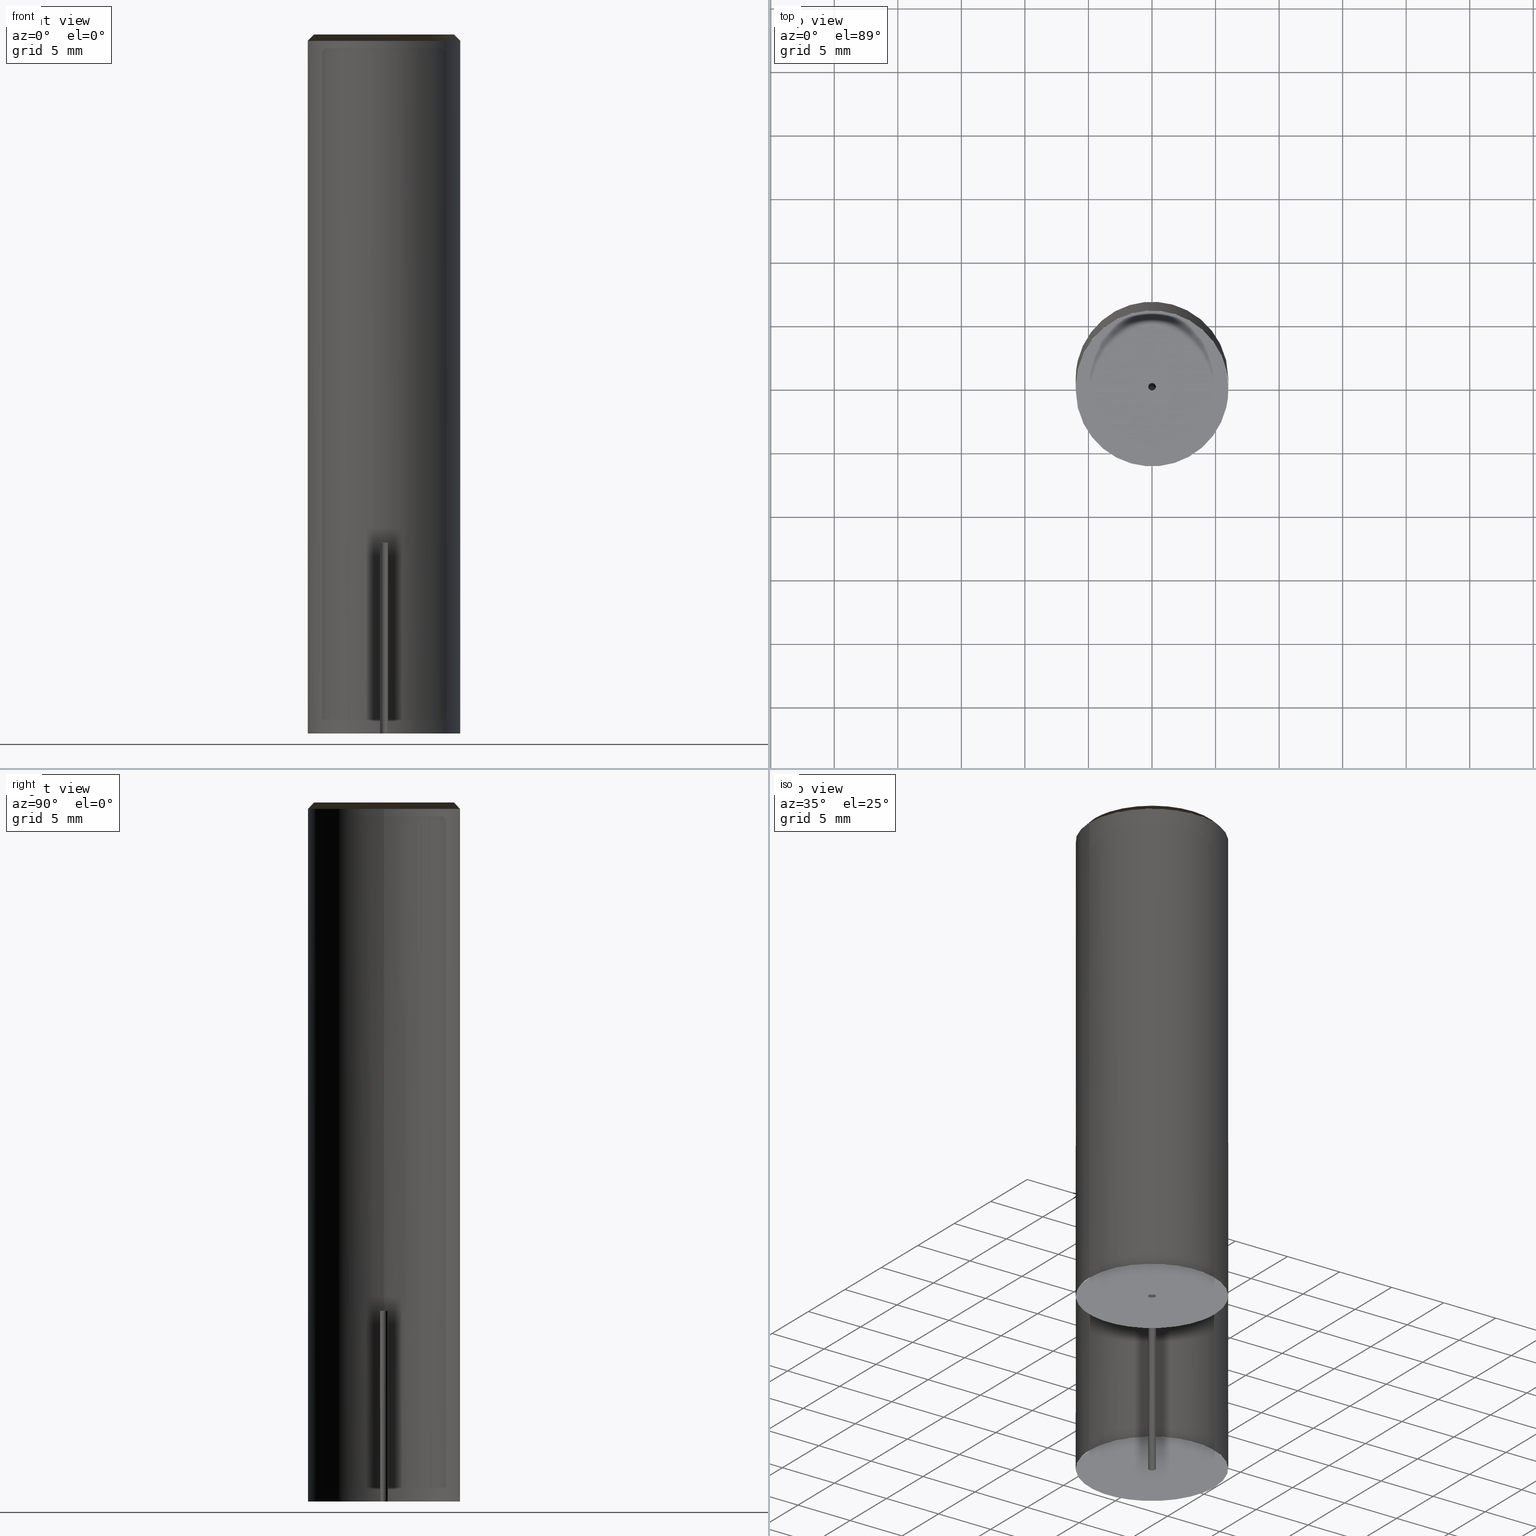
[diagram: canonical four-view strip — front | top / right | iso, engineering-drawing reading convention]
A machine part, canonical four-view strip (front | top / right | iso — engineering-drawing reading convention). The complete STEP part file that produces these views, byte-faithful:
ISO-10303-21;
HEADER;
/* Generated by ISBE GmbH (www.isbe.de) */
/* OPTION: using custom schema-name function */

FILE_DESCRIPTION(
/* description */ (''),
/* implementation_level */ '2;1');

FILE_NAME(
/*name*/ '2510090120',
/*time_stamp*/'2019-2-20T10:20:38',
/*author*/ ('ISBE GmbH'),
/*organization*/ ('ISBE GmbH'),
/*preprocessor_version*/ 'STEP IO v1.0',
/*originating_system*/ '',
/*authorisation*/ '');

FILE_SCHEMA (('AUTOMOTIVE_DESIGN'));
ENDSEC;

DATA;
#10=SHAPE_DEFINITION_REPRESENTATION(#11,#53);
#11=PRODUCT_DEFINITION_SHAPE('Document','',#13);
#12=PRODUCT_DEFINITION_CONTEXT('3D Mechanical Parts',#17,'design');
#13=PRODUCT_DEFINITION('A','First version',#14,#12);
#14=PRODUCT_DEFINITION_FORMATION_WITH_SPECIFIED_SOURCE('A','First version',#19,.MADE.);
#15=PRODUCT_RELATED_PRODUCT_CATEGORY('tool','tool',(#19));
#16=APPLICATION_PROTOCOL_DEFINITION('Draft International Standard', 'automotive_design',1999,#17);
#17=APPLICATION_CONTEXT('data for automotive mechanical design processes');
#18=PRODUCT_CONTEXT('3D Mechanical Parts',#17,'mechanical');
#19=PRODUCT('Document','Document','ISBE converted to STEP',(#18));
#20=(
LENGTH_UNIT()
NAMED_UNIT(*)
SI_UNIT(.MILLI.,.METRE.)
);
#21=(
NAMED_UNIT(*)
PLANE_ANGLE_UNIT()
SI_UNIT($,.RADIAN.)
);
#22=DIMENSIONAL_EXPONENTS(0.,0.,0.,0.,0.,0.,0.);
#23=PLANE_ANGLE_MEASURE_WITH_UNIT(PLANE_ANGLE_MEASURE(0.01745329252),#21);
#24=(
CONVERSION_BASED_UNIT('DEGREES',#23)
NAMED_UNIT(#22)
PLANE_ANGLE_UNIT()
);
#25=(
NAMED_UNIT(*)
SI_UNIT($,.STERADIAN.)
SOLID_ANGLE_UNIT()
);
#26=UNCERTAINTY_MEASURE_WITH_UNIT(LENGTH_MEASURE(0.001),#20, 'DISTANCE_ACCURACY_VALUE', 'Maximum model space distance between geometric entities at asserted connectivities');
#27=(
GEOMETRIC_REPRESENTATION_CONTEXT(3)
GLOBAL_UNCERTAINTY_ASSIGNED_CONTEXT((#26))
GLOBAL_UNIT_ASSIGNED_CONTEXT((#25,#24,#20))
REPRESENTATION_CONTEXT('ID1','3D')
);
#28=CARTESIAN_POINT('',(0.0,0.0,0.0));
#29=DIRECTION('',(1.0,0.0,0.0));
#30=DIRECTION('',(0.0,0.0,1.0));
#31=AXIS2_PLACEMENT_3D('',#28,#30,#29);
#32=CARTESIAN_POINT('',(0.0,0.0,0.0));
#33=DIRECTION('',(1.0,0.0,0.0));
#34=DIRECTION('',(0.0,0.0,1.0));
#35=AXIS2_PLACEMENT_3D('',#32,#34,#33);
#36=CARTESIAN_POINT('',(0.0,0.0,0.0));
#37=DIRECTION('',(1.0,0.0,0.0));
#38=DIRECTION('',(0.0,0.0,1.0));
#39=AXIS2_PLACEMENT_3D('',#36,#38,#37);
#40=CARTESIAN_POINT('',(0.0,0.0,0.0));
#41=DIRECTION('',(0.0,0.0,1.0));
#42=DIRECTION('',(1.0,0.0,0.0));
#43=AXIS2_PLACEMENT_3D('MCS',#40,#42,#41);
#44=CARTESIAN_POINT('',(0.0,0.0,40.0));
#45=DIRECTION('',(0.0,0.0,1.0));
#46=DIRECTION('',(1.0,0.0,0.0));
#47=AXIS2_PLACEMENT_3D('PCS',#44,#46,#45);
#48=CARTESIAN_POINT('',(0.0,0.0,-15.0));
#49=DIRECTION('',(0.0,0.0,1.0));
#50=DIRECTION('',(1.0,0.0,0.0));
#51=AXIS2_PLACEMENT_3D('CIP',#48,#50,#49);
#53=SHAPE_REPRESENTATION('Document',(#31,#35,#39,#43,#47,#51),#27);
#54=DIRECTION('',(1.0,0.0,0.0));
#55=DIRECTION('',(0.0,0.0,1.0));
#56=CARTESIAN_POINT('',(0.25453356606,-0.040462436615,-14.215158870363));
#57=CARTESIAN_POINT('',(-0.059996999925,-0.0006,-15.0));
#58=CARTESIAN_POINT('',(-0.058929584701,-0.107336185185,-15.0));
#59=CARTESIAN_POINT('',(-0.057622657692,-0.23802235133,-15.0));
#60=CARTESIAN_POINT('',(-0.057057612234,-0.294524071828,-15.0));
#61=CARTESIAN_POINT('',(-0.092225285022,0.240663752631,-14.215158870363));
#62=CARTESIAN_POINT('',(0.030518115205,-0.051658926086,-15.0));
#63=CARTESIAN_POINT('',(0.122420655466,0.002633575207,-15.0));
#64=CARTESIAN_POINT('',(0.234944731766,0.069108490271,-15.0));
#65=CARTESIAN_POINT('',(0.283594134346,0.09784869424,-15.0));
#66=CARTESIAN_POINT('',(-0.162308281038,-0.200201316016,-14.215158870363));
#67=CARTESIAN_POINT('',(0.02947888472,0.052258926086,-15.0));
#68=CARTESIAN_POINT('',(-0.063491070765,0.104702609978,-15.0));
#69=CARTESIAN_POINT('',(-0.177322074075,0.16891386106,-15.0));
#70=CARTESIAN_POINT('',(-0.226536522112,0.196675377588,-15.0));
#71=CARTESIAN_POINT('',(0.3,0.0,-15.0));
#72=CARTESIAN_POINT('',(0.3,0.3,-15.0));
#73=CARTESIAN_POINT('',(0.0,0.3,-15.0));
#74=CARTESIAN_POINT('',(-0.3,0.3,-15.0));
#75=CARTESIAN_POINT('',(-0.3,0.0,-15.0));
#76=CARTESIAN_POINT('',(6.0,0.0,-15.0));
#77=CARTESIAN_POINT('',(6.0,6.0,-15.0));
#78=CARTESIAN_POINT('',(0.0,6.0,-15.0));
#79=CARTESIAN_POINT('',(-6.0,6.0,-15.0));
#80=CARTESIAN_POINT('',(-6.0,0.0,-15.0));
#81=CARTESIAN_POINT('',(6.0,0.0,0.0));
#82=CARTESIAN_POINT('',(6.0,6.0,0.0));
#83=CARTESIAN_POINT('',(0.0,6.0,0.0));
#84=CARTESIAN_POINT('',(-6.0,6.0,0.0));
#85=CARTESIAN_POINT('',(-6.0,0.0,0.0));
#86=CARTESIAN_POINT('',(0.3,0.0,0.0));
#87=CARTESIAN_POINT('',(0.3,0.3,0.0));
#88=CARTESIAN_POINT('',(0.0,0.3,0.0));
#89=CARTESIAN_POINT('',(-0.3,0.3,0.0));
#90=CARTESIAN_POINT('',(-0.3,0.0,0.0));
#91=CARTESIAN_POINT('',(-0.3,-0.3,-15.0));
#92=CARTESIAN_POINT('',(0.0,-0.3,-15.0));
#93=CARTESIAN_POINT('',(0.3,-0.3,-15.0));
#94=CARTESIAN_POINT('',(-6.0,-6.0,-15.0));
#95=CARTESIAN_POINT('',(0.0,-6.0,-15.0));
#96=CARTESIAN_POINT('',(6.0,-6.0,-15.0));
#97=CARTESIAN_POINT('',(-6.0,-6.0,0.0));
#98=CARTESIAN_POINT('',(0.0,-6.0,0.0));
#99=CARTESIAN_POINT('',(6.0,-6.0,0.0));
#100=CARTESIAN_POINT('',(-0.3,-0.3,0.0));
#101=CARTESIAN_POINT('',(0.0,-0.3,0.0));
#102=CARTESIAN_POINT('',(0.3,-0.3,0.0));
#103=CARTESIAN_POINT('',(0.0,0.0,-15.0));
#104=CARTESIAN_POINT('',(6.0,0.0,39.5));
#105=CARTESIAN_POINT('',(6.0,6.0,39.5));
#106=CARTESIAN_POINT('',(0.0,6.0,39.5));
#107=CARTESIAN_POINT('',(-6.0,6.0,39.5));
#108=CARTESIAN_POINT('',(-6.0,0.0,39.5));
#109=CARTESIAN_POINT('',(5.5,0.0,40.0));
#110=CARTESIAN_POINT('',(5.5,5.5,40.0));
#111=CARTESIAN_POINT('',(0.0,5.5,40.0));
#112=CARTESIAN_POINT('',(-5.5,5.5,40.0));
#113=CARTESIAN_POINT('',(-5.5,0.0,40.0));
#114=CARTESIAN_POINT('',(0.0,0.0,40.0));
#115=CARTESIAN_POINT('',(-6.0,-6.0,39.5));
#116=CARTESIAN_POINT('',(0.0,-6.0,39.5));
#117=CARTESIAN_POINT('',(6.0,-6.0,39.5));
#118=CARTESIAN_POINT('',(-5.5,-5.5,40.0));
#119=CARTESIAN_POINT('',(0.0,-5.5,40.0));
#120=CARTESIAN_POINT('',(5.5,-5.5,40.0));
#121=(
BOUNDED_CURVE()
B_SPLINE_CURVE(1,(#56,#57,#58,#59,#60),.UNSPECIFIED.,.F.,.F.)
B_SPLINE_CURVE_WITH_KNOTS((2,1,1,1,2),
(0.0,0.742249076033,0.83584927074,0.950451929393,1.0),.UNSPECIFIED.)
CURVE()
GEOMETRIC_REPRESENTATION_ITEM()
RATIONAL_B_SPLINE_CURVE((1.0,1.0,1.0,1.0,1.0))
REPRESENTATION_ITEM('')
);
#122=(
BOUNDED_CURVE()
B_SPLINE_CURVE(1,(#61,#62,#63,#64,#65),.UNSPECIFIED.,.F.,.F.)
B_SPLINE_CURVE_WITH_KNOTS((2,1,1,1,2),
(0.0,0.742249076033,0.83584927074,0.950451929393,1.0),.UNSPECIFIED.)
CURVE()
GEOMETRIC_REPRESENTATION_ITEM()
RATIONAL_B_SPLINE_CURVE((1.0,1.0,1.0,1.0,1.0))
REPRESENTATION_ITEM('')
);
#123=(
BOUNDED_CURVE()
B_SPLINE_CURVE(1,(#66,#67,#68,#69,#70),.UNSPECIFIED.,.F.,.F.)
B_SPLINE_CURVE_WITH_KNOTS((2,1,1,1,2),
(0.0,0.742249076033,0.83584927074,0.950451929393,1.0),.UNSPECIFIED.)
CURVE()
GEOMETRIC_REPRESENTATION_ITEM()
RATIONAL_B_SPLINE_CURVE((1.0,1.0,1.0,1.0,1.0))
REPRESENTATION_ITEM('')
);
#124=SHAPE_REPRESENTATION_RELATIONSHIP('','',#53,#125);
#125=GEOMETRICALLY_BOUNDED_WIREFRAME_SHAPE_REPRESENTATION('Curves',(#126,#31),#27);
#126=GEOMETRIC_CURVE_SET('CurveSet',(#121,#122,#123));
#127=(
BOUNDED_SURFACE()
B_SPLINE_SURFACE(1,2,(
(#71,#72,#73,#74,#75),
(#76,#77,#78,#79,#80)
), .UNSPECIFIED.,.F.,.F.,.F.)
B_SPLINE_SURFACE_WITH_KNOTS((2,2),(3,2,3),(
0.0,1.0),(
0.0,0.5,1.0), .UNSPECIFIED.)
GEOMETRIC_REPRESENTATION_ITEM()
RATIONAL_B_SPLINE_SURFACE(((1.0,0.707106781187,1.0,0.707106781187,1.0),
(1.0,0.707106781187,1.0,0.707106781187,1.0)
))
REPRESENTATION_ITEM('')
SURFACE()
);
#128=(
BOUNDED_CURVE()
B_SPLINE_CURVE(2,(#75,#74,#73,#72,#71),.UNSPECIFIED.,.F.,.F.)
B_SPLINE_CURVE_WITH_KNOTS((3,2,3),
(0.0,0.5,1.0),.UNSPECIFIED.)
CURVE()
GEOMETRIC_REPRESENTATION_ITEM()
RATIONAL_B_SPLINE_CURVE((1.0,0.707106781187,1.0,0.707106781187,1.0))
REPRESENTATION_ITEM('')
);
#129=(
BOUNDED_CURVE()
B_SPLINE_CURVE(1,(#71,#76),.UNSPECIFIED.,.F.,.F.)
B_SPLINE_CURVE_WITH_KNOTS((2,2),
(0.0,1.0),.UNSPECIFIED.)
CURVE()
GEOMETRIC_REPRESENTATION_ITEM()
RATIONAL_B_SPLINE_CURVE((1.0,1.0))
REPRESENTATION_ITEM('')
);
#130=(
BOUNDED_CURVE()
B_SPLINE_CURVE(2,(#76,#77,#78,#79,#80),.UNSPECIFIED.,.F.,.F.)
B_SPLINE_CURVE_WITH_KNOTS((3,2,3),
(0.0,0.5,1.0),.UNSPECIFIED.)
CURVE()
GEOMETRIC_REPRESENTATION_ITEM()
RATIONAL_B_SPLINE_CURVE((1.0,0.707106781187,1.0,0.707106781187,1.0))
REPRESENTATION_ITEM('')
);
#131=(
BOUNDED_CURVE()
B_SPLINE_CURVE(1,(#80,#75),.UNSPECIFIED.,.F.,.F.)
B_SPLINE_CURVE_WITH_KNOTS((2,2),
(0.0,1.0),.UNSPECIFIED.)
CURVE()
GEOMETRIC_REPRESENTATION_ITEM()
RATIONAL_B_SPLINE_CURVE((1.0,1.0))
REPRESENTATION_ITEM('')
);
#132=VERTEX_POINT('',#71);
#133=VERTEX_POINT('',#75);
#134=VERTEX_POINT('',#76);
#135=VERTEX_POINT('',#80);
#136=EDGE_CURVE('',#133,#132,#128,.T.);
#137=EDGE_CURVE('',#132,#134,#129,.T.);
#138=EDGE_CURVE('',#134,#135,#130,.T.);
#139=EDGE_CURVE('',#135,#133,#131,.T.);
#140=ORIENTED_EDGE('',*,*,#136,.T.);
#141=ORIENTED_EDGE('',*,*,#137,.T.);
#142=ORIENTED_EDGE('',*,*,#138,.T.);
#143=ORIENTED_EDGE('',*,*,#139,.T.);
#144=EDGE_LOOP('',(#140,#141,#142,#143));
#145=FACE_OUTER_BOUND('',#144,.T.);
#146=ADVANCED_FACE('',(#145),#127,.T.);
#147=(
BOUNDED_SURFACE()
B_SPLINE_SURFACE(1,2,(
(#76,#77,#78,#79,#80),
(#81,#82,#83,#84,#85)
), .UNSPECIFIED.,.F.,.F.,.F.)
B_SPLINE_SURFACE_WITH_KNOTS((2,2),(3,2,3),(
0.0,1.0),(
0.0,0.5,1.0), .UNSPECIFIED.)
GEOMETRIC_REPRESENTATION_ITEM()
RATIONAL_B_SPLINE_SURFACE(((1.0,0.707106781187,1.0,0.707106781187,1.0),
(1.0,0.707106781187,1.0,0.707106781187,1.0)
))
REPRESENTATION_ITEM('')
SURFACE()
);
#148=(
BOUNDED_CURVE()
B_SPLINE_CURVE(2,(#80,#79,#78,#77,#76),.UNSPECIFIED.,.F.,.F.)
B_SPLINE_CURVE_WITH_KNOTS((3,2,3),
(0.0,0.5,1.0),.UNSPECIFIED.)
CURVE()
GEOMETRIC_REPRESENTATION_ITEM()
RATIONAL_B_SPLINE_CURVE((1.0,0.707106781187,1.0,0.707106781187,1.0))
REPRESENTATION_ITEM('')
);
#149=(
BOUNDED_CURVE()
B_SPLINE_CURVE(1,(#76,#81),.UNSPECIFIED.,.F.,.F.)
B_SPLINE_CURVE_WITH_KNOTS((2,2),
(0.0,1.0),.UNSPECIFIED.)
CURVE()
GEOMETRIC_REPRESENTATION_ITEM()
RATIONAL_B_SPLINE_CURVE((1.0,1.0))
REPRESENTATION_ITEM('')
);
#150=(
BOUNDED_CURVE()
B_SPLINE_CURVE(2,(#81,#82,#83,#84,#85),.UNSPECIFIED.,.F.,.F.)
B_SPLINE_CURVE_WITH_KNOTS((3,2,3),
(0.0,0.5,1.0),.UNSPECIFIED.)
CURVE()
GEOMETRIC_REPRESENTATION_ITEM()
RATIONAL_B_SPLINE_CURVE((1.0,0.707106781187,1.0,0.707106781187,1.0))
REPRESENTATION_ITEM('')
);
#151=(
BOUNDED_CURVE()
B_SPLINE_CURVE(1,(#85,#80),.UNSPECIFIED.,.F.,.F.)
B_SPLINE_CURVE_WITH_KNOTS((2,2),
(0.0,1.0),.UNSPECIFIED.)
CURVE()
GEOMETRIC_REPRESENTATION_ITEM()
RATIONAL_B_SPLINE_CURVE((1.0,1.0))
REPRESENTATION_ITEM('')
);
#152=VERTEX_POINT('',#76);
#153=VERTEX_POINT('',#80);
#154=VERTEX_POINT('',#81);
#155=VERTEX_POINT('',#85);
#156=EDGE_CURVE('',#153,#152,#148,.T.);
#157=EDGE_CURVE('',#152,#154,#149,.T.);
#158=EDGE_CURVE('',#154,#155,#150,.T.);
#159=EDGE_CURVE('',#155,#153,#151,.T.);
#160=ORIENTED_EDGE('',*,*,#156,.T.);
#161=ORIENTED_EDGE('',*,*,#157,.T.);
#162=ORIENTED_EDGE('',*,*,#158,.T.);
#163=ORIENTED_EDGE('',*,*,#159,.T.);
#164=EDGE_LOOP('',(#160,#161,#162,#163));
#165=FACE_OUTER_BOUND('',#164,.T.);
#166=ADVANCED_FACE('',(#165),#147,.T.);
#167=(
BOUNDED_SURFACE()
B_SPLINE_SURFACE(1,2,(
(#81,#82,#83,#84,#85),
(#86,#87,#88,#89,#90)
), .UNSPECIFIED.,.F.,.F.,.F.)
B_SPLINE_SURFACE_WITH_KNOTS((2,2),(3,2,3),(
0.0,1.0),(
0.0,0.5,1.0), .UNSPECIFIED.)
GEOMETRIC_REPRESENTATION_ITEM()
RATIONAL_B_SPLINE_SURFACE(((1.0,0.707106781187,1.0,0.707106781187,1.0),
(1.0,0.707106781187,1.0,0.707106781187,1.0)
))
REPRESENTATION_ITEM('')
SURFACE()
);
#168=(
BOUNDED_CURVE()
B_SPLINE_CURVE(2,(#85,#84,#83,#82,#81),.UNSPECIFIED.,.F.,.F.)
B_SPLINE_CURVE_WITH_KNOTS((3,2,3),
(0.0,0.5,1.0),.UNSPECIFIED.)
CURVE()
GEOMETRIC_REPRESENTATION_ITEM()
RATIONAL_B_SPLINE_CURVE((1.0,0.707106781187,1.0,0.707106781187,1.0))
REPRESENTATION_ITEM('')
);
#169=(
BOUNDED_CURVE()
B_SPLINE_CURVE(1,(#81,#86),.UNSPECIFIED.,.F.,.F.)
B_SPLINE_CURVE_WITH_KNOTS((2,2),
(0.0,1.0),.UNSPECIFIED.)
CURVE()
GEOMETRIC_REPRESENTATION_ITEM()
RATIONAL_B_SPLINE_CURVE((1.0,1.0))
REPRESENTATION_ITEM('')
);
#170=(
BOUNDED_CURVE()
B_SPLINE_CURVE(2,(#86,#87,#88,#89,#90),.UNSPECIFIED.,.F.,.F.)
B_SPLINE_CURVE_WITH_KNOTS((3,2,3),
(0.0,0.5,1.0),.UNSPECIFIED.)
CURVE()
GEOMETRIC_REPRESENTATION_ITEM()
RATIONAL_B_SPLINE_CURVE((1.0,0.707106781187,1.0,0.707106781187,1.0))
REPRESENTATION_ITEM('')
);
#171=(
BOUNDED_CURVE()
B_SPLINE_CURVE(1,(#90,#85),.UNSPECIFIED.,.F.,.F.)
B_SPLINE_CURVE_WITH_KNOTS((2,2),
(0.0,1.0),.UNSPECIFIED.)
CURVE()
GEOMETRIC_REPRESENTATION_ITEM()
RATIONAL_B_SPLINE_CURVE((1.0,1.0))
REPRESENTATION_ITEM('')
);
#172=VERTEX_POINT('',#81);
#173=VERTEX_POINT('',#85);
#174=VERTEX_POINT('',#86);
#175=VERTEX_POINT('',#90);
#176=EDGE_CURVE('',#173,#172,#168,.T.);
#177=EDGE_CURVE('',#172,#174,#169,.T.);
#178=EDGE_CURVE('',#174,#175,#170,.T.);
#179=EDGE_CURVE('',#175,#173,#171,.T.);
#180=ORIENTED_EDGE('',*,*,#176,.T.);
#181=ORIENTED_EDGE('',*,*,#177,.T.);
#182=ORIENTED_EDGE('',*,*,#178,.T.);
#183=ORIENTED_EDGE('',*,*,#179,.T.);
#184=EDGE_LOOP('',(#180,#181,#182,#183));
#185=FACE_OUTER_BOUND('',#184,.T.);
#186=ADVANCED_FACE('',(#185),#167,.T.);
#187=(
BOUNDED_SURFACE()
B_SPLINE_SURFACE(1,2,(
(#86,#87,#88,#89,#90),
(#71,#72,#73,#74,#75)
), .UNSPECIFIED.,.F.,.F.,.F.)
B_SPLINE_SURFACE_WITH_KNOTS((2,2),(3,2,3),(
0.0,1.0),(
0.0,0.5,1.0), .UNSPECIFIED.)
GEOMETRIC_REPRESENTATION_ITEM()
RATIONAL_B_SPLINE_SURFACE(((1.0,0.707106781187,1.0,0.707106781187,1.0),
(1.0,0.707106781187,1.0,0.707106781187,1.0)
))
REPRESENTATION_ITEM('')
SURFACE()
);
#188=(
BOUNDED_CURVE()
B_SPLINE_CURVE(2,(#90,#89,#88,#87,#86),.UNSPECIFIED.,.F.,.F.)
B_SPLINE_CURVE_WITH_KNOTS((3,2,3),
(0.0,0.5,1.0),.UNSPECIFIED.)
CURVE()
GEOMETRIC_REPRESENTATION_ITEM()
RATIONAL_B_SPLINE_CURVE((1.0,0.707106781187,1.0,0.707106781187,1.0))
REPRESENTATION_ITEM('')
);
#189=(
BOUNDED_CURVE()
B_SPLINE_CURVE(1,(#86,#71),.UNSPECIFIED.,.F.,.F.)
B_SPLINE_CURVE_WITH_KNOTS((2,2),
(0.0,1.0),.UNSPECIFIED.)
CURVE()
GEOMETRIC_REPRESENTATION_ITEM()
RATIONAL_B_SPLINE_CURVE((1.0,1.0))
REPRESENTATION_ITEM('')
);
#190=(
BOUNDED_CURVE()
B_SPLINE_CURVE(2,(#71,#72,#73,#74,#75),.UNSPECIFIED.,.F.,.F.)
B_SPLINE_CURVE_WITH_KNOTS((3,2,3),
(0.0,0.5,1.0),.UNSPECIFIED.)
CURVE()
GEOMETRIC_REPRESENTATION_ITEM()
RATIONAL_B_SPLINE_CURVE((1.0,0.707106781187,1.0,0.707106781187,1.0))
REPRESENTATION_ITEM('')
);
#191=(
BOUNDED_CURVE()
B_SPLINE_CURVE(1,(#75,#90),.UNSPECIFIED.,.F.,.F.)
B_SPLINE_CURVE_WITH_KNOTS((2,2),
(0.0,1.0),.UNSPECIFIED.)
CURVE()
GEOMETRIC_REPRESENTATION_ITEM()
RATIONAL_B_SPLINE_CURVE((1.0,1.0))
REPRESENTATION_ITEM('')
);
#192=VERTEX_POINT('',#71);
#193=VERTEX_POINT('',#75);
#194=VERTEX_POINT('',#86);
#195=VERTEX_POINT('',#90);
#196=EDGE_CURVE('',#195,#194,#188,.T.);
#197=EDGE_CURVE('',#194,#192,#189,.T.);
#198=EDGE_CURVE('',#192,#193,#190,.T.);
#199=EDGE_CURVE('',#193,#195,#191,.T.);
#200=ORIENTED_EDGE('',*,*,#196,.T.);
#201=ORIENTED_EDGE('',*,*,#197,.T.);
#202=ORIENTED_EDGE('',*,*,#198,.T.);
#203=ORIENTED_EDGE('',*,*,#199,.T.);
#204=EDGE_LOOP('',(#200,#201,#202,#203));
#205=FACE_OUTER_BOUND('',#204,.T.);
#206=ADVANCED_FACE('',(#205),#187,.T.);
#207=(
BOUNDED_SURFACE()
B_SPLINE_SURFACE(1,2,(
(#75,#91,#92,#93,#71),
(#80,#94,#95,#96,#76)
), .UNSPECIFIED.,.F.,.F.,.F.)
B_SPLINE_SURFACE_WITH_KNOTS((2,2),(3,2,3),(
0.0,1.0),(
0.0,0.5,1.0), .UNSPECIFIED.)
GEOMETRIC_REPRESENTATION_ITEM()
RATIONAL_B_SPLINE_SURFACE(((1.0,0.707106781187,1.0,0.707106781187,1.0),
(1.0,0.707106781187,1.0,0.707106781187,1.0)
))
REPRESENTATION_ITEM('')
SURFACE()
);
#208=(
BOUNDED_CURVE()
B_SPLINE_CURVE(2,(#71,#93,#92,#91,#75),.UNSPECIFIED.,.F.,.F.)
B_SPLINE_CURVE_WITH_KNOTS((3,2,3),
(0.0,0.5,1.0),.UNSPECIFIED.)
CURVE()
GEOMETRIC_REPRESENTATION_ITEM()
RATIONAL_B_SPLINE_CURVE((1.0,0.707106781187,1.0,0.707106781187,1.0))
REPRESENTATION_ITEM('')
);
#209=(
BOUNDED_CURVE()
B_SPLINE_CURVE(1,(#75,#80),.UNSPECIFIED.,.F.,.F.)
B_SPLINE_CURVE_WITH_KNOTS((2,2),
(0.0,1.0),.UNSPECIFIED.)
CURVE()
GEOMETRIC_REPRESENTATION_ITEM()
RATIONAL_B_SPLINE_CURVE((1.0,1.0))
REPRESENTATION_ITEM('')
);
#210=(
BOUNDED_CURVE()
B_SPLINE_CURVE(2,(#80,#94,#95,#96,#76),.UNSPECIFIED.,.F.,.F.)
B_SPLINE_CURVE_WITH_KNOTS((3,2,3),
(0.0,0.5,1.0),.UNSPECIFIED.)
CURVE()
GEOMETRIC_REPRESENTATION_ITEM()
RATIONAL_B_SPLINE_CURVE((1.0,0.707106781187,1.0,0.707106781187,1.0))
REPRESENTATION_ITEM('')
);
#211=(
BOUNDED_CURVE()
B_SPLINE_CURVE(1,(#76,#71),.UNSPECIFIED.,.F.,.F.)
B_SPLINE_CURVE_WITH_KNOTS((2,2),
(0.0,1.0),.UNSPECIFIED.)
CURVE()
GEOMETRIC_REPRESENTATION_ITEM()
RATIONAL_B_SPLINE_CURVE((1.0,1.0))
REPRESENTATION_ITEM('')
);
#212=VERTEX_POINT('',#71);
#213=VERTEX_POINT('',#75);
#214=VERTEX_POINT('',#76);
#215=VERTEX_POINT('',#80);
#216=EDGE_CURVE('',#212,#213,#208,.T.);
#217=EDGE_CURVE('',#213,#215,#209,.T.);
#218=EDGE_CURVE('',#215,#214,#210,.T.);
#219=EDGE_CURVE('',#214,#212,#211,.T.);
#220=ORIENTED_EDGE('',*,*,#216,.T.);
#221=ORIENTED_EDGE('',*,*,#217,.T.);
#222=ORIENTED_EDGE('',*,*,#218,.T.);
#223=ORIENTED_EDGE('',*,*,#219,.T.);
#224=EDGE_LOOP('',(#220,#221,#222,#223));
#225=FACE_OUTER_BOUND('',#224,.T.);
#226=ADVANCED_FACE('',(#225),#207,.T.);
#227=(
BOUNDED_SURFACE()
B_SPLINE_SURFACE(1,2,(
(#80,#94,#95,#96,#76),
(#85,#97,#98,#99,#81)
), .UNSPECIFIED.,.F.,.F.,.F.)
B_SPLINE_SURFACE_WITH_KNOTS((2,2),(3,2,3),(
0.0,1.0),(
0.0,0.5,1.0), .UNSPECIFIED.)
GEOMETRIC_REPRESENTATION_ITEM()
RATIONAL_B_SPLINE_SURFACE(((1.0,0.707106781187,1.0,0.707106781187,1.0),
(1.0,0.707106781187,1.0,0.707106781187,1.0)
))
REPRESENTATION_ITEM('')
SURFACE()
);
#228=(
BOUNDED_CURVE()
B_SPLINE_CURVE(2,(#76,#96,#95,#94,#80),.UNSPECIFIED.,.F.,.F.)
B_SPLINE_CURVE_WITH_KNOTS((3,2,3),
(0.0,0.5,1.0),.UNSPECIFIED.)
CURVE()
GEOMETRIC_REPRESENTATION_ITEM()
RATIONAL_B_SPLINE_CURVE((1.0,0.707106781187,1.0,0.707106781187,1.0))
REPRESENTATION_ITEM('')
);
#229=(
BOUNDED_CURVE()
B_SPLINE_CURVE(1,(#80,#85),.UNSPECIFIED.,.F.,.F.)
B_SPLINE_CURVE_WITH_KNOTS((2,2),
(0.0,1.0),.UNSPECIFIED.)
CURVE()
GEOMETRIC_REPRESENTATION_ITEM()
RATIONAL_B_SPLINE_CURVE((1.0,1.0))
REPRESENTATION_ITEM('')
);
#230=(
BOUNDED_CURVE()
B_SPLINE_CURVE(2,(#85,#97,#98,#99,#81),.UNSPECIFIED.,.F.,.F.)
B_SPLINE_CURVE_WITH_KNOTS((3,2,3),
(0.0,0.5,1.0),.UNSPECIFIED.)
CURVE()
GEOMETRIC_REPRESENTATION_ITEM()
RATIONAL_B_SPLINE_CURVE((1.0,0.707106781187,1.0,0.707106781187,1.0))
REPRESENTATION_ITEM('')
);
#231=(
BOUNDED_CURVE()
B_SPLINE_CURVE(1,(#81,#76),.UNSPECIFIED.,.F.,.F.)
B_SPLINE_CURVE_WITH_KNOTS((2,2),
(0.0,1.0),.UNSPECIFIED.)
CURVE()
GEOMETRIC_REPRESENTATION_ITEM()
RATIONAL_B_SPLINE_CURVE((1.0,1.0))
REPRESENTATION_ITEM('')
);
#232=VERTEX_POINT('',#76);
#233=VERTEX_POINT('',#80);
#234=VERTEX_POINT('',#81);
#235=VERTEX_POINT('',#85);
#236=EDGE_CURVE('',#232,#233,#228,.T.);
#237=EDGE_CURVE('',#233,#235,#229,.T.);
#238=EDGE_CURVE('',#235,#234,#230,.T.);
#239=EDGE_CURVE('',#234,#232,#231,.T.);
#240=ORIENTED_EDGE('',*,*,#236,.T.);
#241=ORIENTED_EDGE('',*,*,#237,.T.);
#242=ORIENTED_EDGE('',*,*,#238,.T.);
#243=ORIENTED_EDGE('',*,*,#239,.T.);
#244=EDGE_LOOP('',(#240,#241,#242,#243));
#245=FACE_OUTER_BOUND('',#244,.T.);
#246=ADVANCED_FACE('',(#245),#227,.T.);
#247=(
BOUNDED_SURFACE()
B_SPLINE_SURFACE(1,2,(
(#85,#97,#98,#99,#81),
(#90,#100,#101,#102,#86)
), .UNSPECIFIED.,.F.,.F.,.F.)
B_SPLINE_SURFACE_WITH_KNOTS((2,2),(3,2,3),(
0.0,1.0),(
0.0,0.5,1.0), .UNSPECIFIED.)
GEOMETRIC_REPRESENTATION_ITEM()
RATIONAL_B_SPLINE_SURFACE(((1.0,0.707106781187,1.0,0.707106781187,1.0),
(1.0,0.707106781187,1.0,0.707106781187,1.0)
))
REPRESENTATION_ITEM('')
SURFACE()
);
#248=(
BOUNDED_CURVE()
B_SPLINE_CURVE(2,(#81,#99,#98,#97,#85),.UNSPECIFIED.,.F.,.F.)
B_SPLINE_CURVE_WITH_KNOTS((3,2,3),
(0.0,0.5,1.0),.UNSPECIFIED.)
CURVE()
GEOMETRIC_REPRESENTATION_ITEM()
RATIONAL_B_SPLINE_CURVE((1.0,0.707106781187,1.0,0.707106781187,1.0))
REPRESENTATION_ITEM('')
);
#249=(
BOUNDED_CURVE()
B_SPLINE_CURVE(1,(#85,#90),.UNSPECIFIED.,.F.,.F.)
B_SPLINE_CURVE_WITH_KNOTS((2,2),
(0.0,1.0),.UNSPECIFIED.)
CURVE()
GEOMETRIC_REPRESENTATION_ITEM()
RATIONAL_B_SPLINE_CURVE((1.0,1.0))
REPRESENTATION_ITEM('')
);
#250=(
BOUNDED_CURVE()
B_SPLINE_CURVE(2,(#90,#100,#101,#102,#86),.UNSPECIFIED.,.F.,.F.)
B_SPLINE_CURVE_WITH_KNOTS((3,2,3),
(0.0,0.5,1.0),.UNSPECIFIED.)
CURVE()
GEOMETRIC_REPRESENTATION_ITEM()
RATIONAL_B_SPLINE_CURVE((1.0,0.707106781187,1.0,0.707106781187,1.0))
REPRESENTATION_ITEM('')
);
#251=(
BOUNDED_CURVE()
B_SPLINE_CURVE(1,(#86,#81),.UNSPECIFIED.,.F.,.F.)
B_SPLINE_CURVE_WITH_KNOTS((2,2),
(0.0,1.0),.UNSPECIFIED.)
CURVE()
GEOMETRIC_REPRESENTATION_ITEM()
RATIONAL_B_SPLINE_CURVE((1.0,1.0))
REPRESENTATION_ITEM('')
);
#252=VERTEX_POINT('',#81);
#253=VERTEX_POINT('',#85);
#254=VERTEX_POINT('',#86);
#255=VERTEX_POINT('',#90);
#256=EDGE_CURVE('',#252,#253,#248,.T.);
#257=EDGE_CURVE('',#253,#255,#249,.T.);
#258=EDGE_CURVE('',#255,#254,#250,.T.);
#259=EDGE_CURVE('',#254,#252,#251,.T.);
#260=ORIENTED_EDGE('',*,*,#256,.T.);
#261=ORIENTED_EDGE('',*,*,#257,.T.);
#262=ORIENTED_EDGE('',*,*,#258,.T.);
#263=ORIENTED_EDGE('',*,*,#259,.T.);
#264=EDGE_LOOP('',(#260,#261,#262,#263));
#265=FACE_OUTER_BOUND('',#264,.T.);
#266=ADVANCED_FACE('',(#265),#247,.T.);
#267=(
BOUNDED_SURFACE()
B_SPLINE_SURFACE(1,2,(
(#90,#100,#101,#102,#86),
(#75,#91,#92,#93,#71)
), .UNSPECIFIED.,.F.,.F.,.F.)
B_SPLINE_SURFACE_WITH_KNOTS((2,2),(3,2,3),(
0.0,1.0),(
0.0,0.5,1.0), .UNSPECIFIED.)
GEOMETRIC_REPRESENTATION_ITEM()
RATIONAL_B_SPLINE_SURFACE(((1.0,0.707106781187,1.0,0.707106781187,1.0),
(1.0,0.707106781187,1.0,0.707106781187,1.0)
))
REPRESENTATION_ITEM('')
SURFACE()
);
#268=(
BOUNDED_CURVE()
B_SPLINE_CURVE(2,(#86,#102,#101,#100,#90),.UNSPECIFIED.,.F.,.F.)
B_SPLINE_CURVE_WITH_KNOTS((3,2,3),
(0.0,0.5,1.0),.UNSPECIFIED.)
CURVE()
GEOMETRIC_REPRESENTATION_ITEM()
RATIONAL_B_SPLINE_CURVE((1.0,0.707106781187,1.0,0.707106781187,1.0))
REPRESENTATION_ITEM('')
);
#269=(
BOUNDED_CURVE()
B_SPLINE_CURVE(1,(#90,#75),.UNSPECIFIED.,.F.,.F.)
B_SPLINE_CURVE_WITH_KNOTS((2,2),
(0.0,1.0),.UNSPECIFIED.)
CURVE()
GEOMETRIC_REPRESENTATION_ITEM()
RATIONAL_B_SPLINE_CURVE((1.0,1.0))
REPRESENTATION_ITEM('')
);
#270=(
BOUNDED_CURVE()
B_SPLINE_CURVE(2,(#75,#91,#92,#93,#71),.UNSPECIFIED.,.F.,.F.)
B_SPLINE_CURVE_WITH_KNOTS((3,2,3),
(0.0,0.5,1.0),.UNSPECIFIED.)
CURVE()
GEOMETRIC_REPRESENTATION_ITEM()
RATIONAL_B_SPLINE_CURVE((1.0,0.707106781187,1.0,0.707106781187,1.0))
REPRESENTATION_ITEM('')
);
#271=(
BOUNDED_CURVE()
B_SPLINE_CURVE(1,(#71,#86),.UNSPECIFIED.,.F.,.F.)
B_SPLINE_CURVE_WITH_KNOTS((2,2),
(0.0,1.0),.UNSPECIFIED.)
CURVE()
GEOMETRIC_REPRESENTATION_ITEM()
RATIONAL_B_SPLINE_CURVE((1.0,1.0))
REPRESENTATION_ITEM('')
);
#272=VERTEX_POINT('',#71);
#273=VERTEX_POINT('',#75);
#274=VERTEX_POINT('',#86);
#275=VERTEX_POINT('',#90);
#276=EDGE_CURVE('',#274,#275,#268,.T.);
#277=EDGE_CURVE('',#275,#273,#269,.T.);
#278=EDGE_CURVE('',#273,#272,#270,.T.);
#279=EDGE_CURVE('',#272,#274,#271,.T.);
#280=ORIENTED_EDGE('',*,*,#276,.T.);
#281=ORIENTED_EDGE('',*,*,#277,.T.);
#282=ORIENTED_EDGE('',*,*,#278,.T.);
#283=ORIENTED_EDGE('',*,*,#279,.T.);
#284=EDGE_LOOP('',(#280,#281,#282,#283));
#285=FACE_OUTER_BOUND('',#284,.T.);
#286=ADVANCED_FACE('',(#285),#267,.T.);
#287=CLOSED_SHELL('',(#146,#166,#186,#206,#226,#246,#266,#286));
#288=SHAPE_REPRESENTATION_RELATIONSHIP('','',#53,#289);
#289=ADVANCED_BREP_SHAPE_REPRESENTATION('Solid0',(#290,#31),#27);
#290=MANIFOLD_SOLID_BREP('brep',#287);
#291=(
BOUNDED_SURFACE()
B_SPLINE_SURFACE(1,2,(
(#103,#103,#103,#103,#103),
(#71,#72,#73,#74,#75)
), .UNSPECIFIED.,.F.,.F.,.F.)
B_SPLINE_SURFACE_WITH_KNOTS((2,2),(3,2,3),(
0.0,1.0),(
0.0,0.5,1.0), .UNSPECIFIED.)
GEOMETRIC_REPRESENTATION_ITEM()
RATIONAL_B_SPLINE_SURFACE(((1.0,0.707106781187,1.0,0.707106781187,1.0),
(1.0,0.707106781187,1.0,0.707106781187,1.0)
))
REPRESENTATION_ITEM('')
SURFACE()
);
#292=(
BOUNDED_CURVE()
B_SPLINE_CURVE(1,(#75,#103),.UNSPECIFIED.,.F.,.F.)
B_SPLINE_CURVE_WITH_KNOTS((2,2),
(0.0,1.0),.UNSPECIFIED.)
CURVE()
GEOMETRIC_REPRESENTATION_ITEM()
RATIONAL_B_SPLINE_CURVE((1.0,1.0))
REPRESENTATION_ITEM('')
);
#293=(
BOUNDED_CURVE()
B_SPLINE_CURVE(1,(#103,#71),.UNSPECIFIED.,.F.,.F.)
B_SPLINE_CURVE_WITH_KNOTS((2,2),
(0.0,1.0),.UNSPECIFIED.)
CURVE()
GEOMETRIC_REPRESENTATION_ITEM()
RATIONAL_B_SPLINE_CURVE((1.0,1.0))
REPRESENTATION_ITEM('')
);
#294=(
BOUNDED_CURVE()
B_SPLINE_CURVE(2,(#71,#72,#73,#74,#75),.UNSPECIFIED.,.F.,.F.)
B_SPLINE_CURVE_WITH_KNOTS((3,2,3),
(0.0,0.5,1.0),.UNSPECIFIED.)
CURVE()
GEOMETRIC_REPRESENTATION_ITEM()
RATIONAL_B_SPLINE_CURVE((1.0,0.707106781187,1.0,0.707106781187,1.0))
REPRESENTATION_ITEM('')
);
#295=VERTEX_POINT('',#71);
#296=VERTEX_POINT('',#75);
#297=VERTEX_POINT('',#103);
#298=EDGE_CURVE('',#296,#297,#292,.T.);
#299=EDGE_CURVE('',#297,#295,#293,.T.);
#300=EDGE_CURVE('',#295,#296,#294,.T.);
#301=ORIENTED_EDGE('',*,*,#298,.T.);
#302=ORIENTED_EDGE('',*,*,#299,.T.);
#303=ORIENTED_EDGE('',*,*,#300,.T.);
#304=EDGE_LOOP('',(#301,#302,#303));
#305=FACE_OUTER_BOUND('',#304,.T.);
#306=ADVANCED_FACE('',(#305),#291,.T.);
#307=(
BOUNDED_SURFACE()
B_SPLINE_SURFACE(1,2,(
(#71,#72,#73,#74,#75),
(#86,#87,#88,#89,#90)
), .UNSPECIFIED.,.F.,.F.,.F.)
B_SPLINE_SURFACE_WITH_KNOTS((2,2),(3,2,3),(
0.0,1.0),(
0.0,0.5,1.0), .UNSPECIFIED.)
GEOMETRIC_REPRESENTATION_ITEM()
RATIONAL_B_SPLINE_SURFACE(((1.0,0.707106781187,1.0,0.707106781187,1.0),
(1.0,0.707106781187,1.0,0.707106781187,1.0)
))
REPRESENTATION_ITEM('')
SURFACE()
);
#308=(
BOUNDED_CURVE()
B_SPLINE_CURVE(2,(#75,#74,#73,#72,#71),.UNSPECIFIED.,.F.,.F.)
B_SPLINE_CURVE_WITH_KNOTS((3,2,3),
(0.0,0.5,1.0),.UNSPECIFIED.)
CURVE()
GEOMETRIC_REPRESENTATION_ITEM()
RATIONAL_B_SPLINE_CURVE((1.0,0.707106781187,1.0,0.707106781187,1.0))
REPRESENTATION_ITEM('')
);
#309=(
BOUNDED_CURVE()
B_SPLINE_CURVE(1,(#71,#86),.UNSPECIFIED.,.F.,.F.)
B_SPLINE_CURVE_WITH_KNOTS((2,2),
(0.0,1.0),.UNSPECIFIED.)
CURVE()
GEOMETRIC_REPRESENTATION_ITEM()
RATIONAL_B_SPLINE_CURVE((1.0,1.0))
REPRESENTATION_ITEM('')
);
#310=(
BOUNDED_CURVE()
B_SPLINE_CURVE(2,(#86,#87,#88,#89,#90),.UNSPECIFIED.,.F.,.F.)
B_SPLINE_CURVE_WITH_KNOTS((3,2,3),
(0.0,0.5,1.0),.UNSPECIFIED.)
CURVE()
GEOMETRIC_REPRESENTATION_ITEM()
RATIONAL_B_SPLINE_CURVE((1.0,0.707106781187,1.0,0.707106781187,1.0))
REPRESENTATION_ITEM('')
);
#311=(
BOUNDED_CURVE()
B_SPLINE_CURVE(1,(#90,#75),.UNSPECIFIED.,.F.,.F.)
B_SPLINE_CURVE_WITH_KNOTS((2,2),
(0.0,1.0),.UNSPECIFIED.)
CURVE()
GEOMETRIC_REPRESENTATION_ITEM()
RATIONAL_B_SPLINE_CURVE((1.0,1.0))
REPRESENTATION_ITEM('')
);
#312=VERTEX_POINT('',#71);
#313=VERTEX_POINT('',#75);
#314=VERTEX_POINT('',#86);
#315=VERTEX_POINT('',#90);
#316=EDGE_CURVE('',#313,#312,#308,.T.);
#317=EDGE_CURVE('',#312,#314,#309,.T.);
#318=EDGE_CURVE('',#314,#315,#310,.T.);
#319=EDGE_CURVE('',#315,#313,#311,.T.);
#320=ORIENTED_EDGE('',*,*,#316,.T.);
#321=ORIENTED_EDGE('',*,*,#317,.T.);
#322=ORIENTED_EDGE('',*,*,#318,.T.);
#323=ORIENTED_EDGE('',*,*,#319,.T.);
#324=EDGE_LOOP('',(#320,#321,#322,#323));
#325=FACE_OUTER_BOUND('',#324,.T.);
#326=ADVANCED_FACE('',(#325),#307,.T.);
#327=(
BOUNDED_SURFACE()
B_SPLINE_SURFACE(1,2,(
(#86,#87,#88,#89,#90),
(#81,#82,#83,#84,#85)
), .UNSPECIFIED.,.F.,.F.,.F.)
B_SPLINE_SURFACE_WITH_KNOTS((2,2),(3,2,3),(
0.0,1.0),(
0.0,0.5,1.0), .UNSPECIFIED.)
GEOMETRIC_REPRESENTATION_ITEM()
RATIONAL_B_SPLINE_SURFACE(((1.0,0.707106781187,1.0,0.707106781187,1.0),
(1.0,0.707106781187,1.0,0.707106781187,1.0)
))
REPRESENTATION_ITEM('')
SURFACE()
);
#328=(
BOUNDED_CURVE()
B_SPLINE_CURVE(2,(#90,#89,#88,#87,#86),.UNSPECIFIED.,.F.,.F.)
B_SPLINE_CURVE_WITH_KNOTS((3,2,3),
(0.0,0.5,1.0),.UNSPECIFIED.)
CURVE()
GEOMETRIC_REPRESENTATION_ITEM()
RATIONAL_B_SPLINE_CURVE((1.0,0.707106781187,1.0,0.707106781187,1.0))
REPRESENTATION_ITEM('')
);
#329=(
BOUNDED_CURVE()
B_SPLINE_CURVE(1,(#86,#81),.UNSPECIFIED.,.F.,.F.)
B_SPLINE_CURVE_WITH_KNOTS((2,2),
(0.0,1.0),.UNSPECIFIED.)
CURVE()
GEOMETRIC_REPRESENTATION_ITEM()
RATIONAL_B_SPLINE_CURVE((1.0,1.0))
REPRESENTATION_ITEM('')
);
#330=(
BOUNDED_CURVE()
B_SPLINE_CURVE(2,(#81,#82,#83,#84,#85),.UNSPECIFIED.,.F.,.F.)
B_SPLINE_CURVE_WITH_KNOTS((3,2,3),
(0.0,0.5,1.0),.UNSPECIFIED.)
CURVE()
GEOMETRIC_REPRESENTATION_ITEM()
RATIONAL_B_SPLINE_CURVE((1.0,0.707106781187,1.0,0.707106781187,1.0))
REPRESENTATION_ITEM('')
);
#331=(
BOUNDED_CURVE()
B_SPLINE_CURVE(1,(#85,#90),.UNSPECIFIED.,.F.,.F.)
B_SPLINE_CURVE_WITH_KNOTS((2,2),
(0.0,1.0),.UNSPECIFIED.)
CURVE()
GEOMETRIC_REPRESENTATION_ITEM()
RATIONAL_B_SPLINE_CURVE((1.0,1.0))
REPRESENTATION_ITEM('')
);
#332=VERTEX_POINT('',#81);
#333=VERTEX_POINT('',#85);
#334=VERTEX_POINT('',#86);
#335=VERTEX_POINT('',#90);
#336=EDGE_CURVE('',#335,#334,#328,.T.);
#337=EDGE_CURVE('',#334,#332,#329,.T.);
#338=EDGE_CURVE('',#332,#333,#330,.T.);
#339=EDGE_CURVE('',#333,#335,#331,.T.);
#340=ORIENTED_EDGE('',*,*,#336,.T.);
#341=ORIENTED_EDGE('',*,*,#337,.T.);
#342=ORIENTED_EDGE('',*,*,#338,.T.);
#343=ORIENTED_EDGE('',*,*,#339,.T.);
#344=EDGE_LOOP('',(#340,#341,#342,#343));
#345=FACE_OUTER_BOUND('',#344,.T.);
#346=ADVANCED_FACE('',(#345),#327,.T.);
#347=(
BOUNDED_SURFACE()
B_SPLINE_SURFACE(1,2,(
(#81,#82,#83,#84,#85),
(#104,#105,#106,#107,#108)
), .UNSPECIFIED.,.F.,.F.,.F.)
B_SPLINE_SURFACE_WITH_KNOTS((2,2),(3,2,3),(
0.0,1.0),(
0.0,0.5,1.0), .UNSPECIFIED.)
GEOMETRIC_REPRESENTATION_ITEM()
RATIONAL_B_SPLINE_SURFACE(((1.0,0.707106781187,1.0,0.707106781187,1.0),
(1.0,0.707106781187,1.0,0.707106781187,1.0)
))
REPRESENTATION_ITEM('')
SURFACE()
);
#348=(
BOUNDED_CURVE()
B_SPLINE_CURVE(2,(#85,#84,#83,#82,#81),.UNSPECIFIED.,.F.,.F.)
B_SPLINE_CURVE_WITH_KNOTS((3,2,3),
(0.0,0.5,1.0),.UNSPECIFIED.)
CURVE()
GEOMETRIC_REPRESENTATION_ITEM()
RATIONAL_B_SPLINE_CURVE((1.0,0.707106781187,1.0,0.707106781187,1.0))
REPRESENTATION_ITEM('')
);
#349=(
BOUNDED_CURVE()
B_SPLINE_CURVE(1,(#81,#104),.UNSPECIFIED.,.F.,.F.)
B_SPLINE_CURVE_WITH_KNOTS((2,2),
(0.0,1.0),.UNSPECIFIED.)
CURVE()
GEOMETRIC_REPRESENTATION_ITEM()
RATIONAL_B_SPLINE_CURVE((1.0,1.0))
REPRESENTATION_ITEM('')
);
#350=(
BOUNDED_CURVE()
B_SPLINE_CURVE(2,(#104,#105,#106,#107,#108),.UNSPECIFIED.,.F.,.F.)
B_SPLINE_CURVE_WITH_KNOTS((3,2,3),
(0.0,0.5,1.0),.UNSPECIFIED.)
CURVE()
GEOMETRIC_REPRESENTATION_ITEM()
RATIONAL_B_SPLINE_CURVE((1.0,0.707106781187,1.0,0.707106781187,1.0))
REPRESENTATION_ITEM('')
);
#351=(
BOUNDED_CURVE()
B_SPLINE_CURVE(1,(#108,#85),.UNSPECIFIED.,.F.,.F.)
B_SPLINE_CURVE_WITH_KNOTS((2,2),
(0.0,1.0),.UNSPECIFIED.)
CURVE()
GEOMETRIC_REPRESENTATION_ITEM()
RATIONAL_B_SPLINE_CURVE((1.0,1.0))
REPRESENTATION_ITEM('')
);
#352=VERTEX_POINT('',#81);
#353=VERTEX_POINT('',#85);
#354=VERTEX_POINT('',#104);
#355=VERTEX_POINT('',#108);
#356=EDGE_CURVE('',#353,#352,#348,.T.);
#357=EDGE_CURVE('',#352,#354,#349,.T.);
#358=EDGE_CURVE('',#354,#355,#350,.T.);
#359=EDGE_CURVE('',#355,#353,#351,.T.);
#360=ORIENTED_EDGE('',*,*,#356,.T.);
#361=ORIENTED_EDGE('',*,*,#357,.T.);
#362=ORIENTED_EDGE('',*,*,#358,.T.);
#363=ORIENTED_EDGE('',*,*,#359,.T.);
#364=EDGE_LOOP('',(#360,#361,#362,#363));
#365=FACE_OUTER_BOUND('',#364,.T.);
#366=ADVANCED_FACE('',(#365),#347,.T.);
#367=(
BOUNDED_SURFACE()
B_SPLINE_SURFACE(1,2,(
(#104,#105,#106,#107,#108),
(#109,#110,#111,#112,#113)
), .UNSPECIFIED.,.F.,.F.,.F.)
B_SPLINE_SURFACE_WITH_KNOTS((2,2),(3,2,3),(
0.0,1.0),(
0.0,0.5,1.0), .UNSPECIFIED.)
GEOMETRIC_REPRESENTATION_ITEM()
RATIONAL_B_SPLINE_SURFACE(((1.0,0.707106781187,1.0,0.707106781187,1.0),
(1.0,0.707106781187,1.0,0.707106781187,1.0)
))
REPRESENTATION_ITEM('')
SURFACE()
);
#368=(
BOUNDED_CURVE()
B_SPLINE_CURVE(2,(#108,#107,#106,#105,#104),.UNSPECIFIED.,.F.,.F.)
B_SPLINE_CURVE_WITH_KNOTS((3,2,3),
(0.0,0.5,1.0),.UNSPECIFIED.)
CURVE()
GEOMETRIC_REPRESENTATION_ITEM()
RATIONAL_B_SPLINE_CURVE((1.0,0.707106781187,1.0,0.707106781187,1.0))
REPRESENTATION_ITEM('')
);
#369=(
BOUNDED_CURVE()
B_SPLINE_CURVE(1,(#104,#109),.UNSPECIFIED.,.F.,.F.)
B_SPLINE_CURVE_WITH_KNOTS((2,2),
(0.0,1.0),.UNSPECIFIED.)
CURVE()
GEOMETRIC_REPRESENTATION_ITEM()
RATIONAL_B_SPLINE_CURVE((1.0,1.0))
REPRESENTATION_ITEM('')
);
#370=(
BOUNDED_CURVE()
B_SPLINE_CURVE(2,(#109,#110,#111,#112,#113),.UNSPECIFIED.,.F.,.F.)
B_SPLINE_CURVE_WITH_KNOTS((3,2,3),
(0.0,0.5,1.0),.UNSPECIFIED.)
CURVE()
GEOMETRIC_REPRESENTATION_ITEM()
RATIONAL_B_SPLINE_CURVE((1.0,0.707106781187,1.0,0.707106781187,1.0))
REPRESENTATION_ITEM('')
);
#371=(
BOUNDED_CURVE()
B_SPLINE_CURVE(1,(#113,#108),.UNSPECIFIED.,.F.,.F.)
B_SPLINE_CURVE_WITH_KNOTS((2,2),
(0.0,1.0),.UNSPECIFIED.)
CURVE()
GEOMETRIC_REPRESENTATION_ITEM()
RATIONAL_B_SPLINE_CURVE((1.0,1.0))
REPRESENTATION_ITEM('')
);
#372=VERTEX_POINT('',#104);
#373=VERTEX_POINT('',#108);
#374=VERTEX_POINT('',#109);
#375=VERTEX_POINT('',#113);
#376=EDGE_CURVE('',#373,#372,#368,.T.);
#377=EDGE_CURVE('',#372,#374,#369,.T.);
#378=EDGE_CURVE('',#374,#375,#370,.T.);
#379=EDGE_CURVE('',#375,#373,#371,.T.);
#380=ORIENTED_EDGE('',*,*,#376,.T.);
#381=ORIENTED_EDGE('',*,*,#377,.T.);
#382=ORIENTED_EDGE('',*,*,#378,.T.);
#383=ORIENTED_EDGE('',*,*,#379,.T.);
#384=EDGE_LOOP('',(#380,#381,#382,#383));
#385=FACE_OUTER_BOUND('',#384,.T.);
#386=ADVANCED_FACE('',(#385),#367,.T.);
#387=(
BOUNDED_SURFACE()
B_SPLINE_SURFACE(1,2,(
(#109,#110,#111,#112,#113),
(#114,#114,#114,#114,#114)
), .UNSPECIFIED.,.F.,.F.,.F.)
B_SPLINE_SURFACE_WITH_KNOTS((2,2),(3,2,3),(
0.0,1.0),(
0.0,0.5,1.0), .UNSPECIFIED.)
GEOMETRIC_REPRESENTATION_ITEM()
RATIONAL_B_SPLINE_SURFACE(((1.0,0.707106781187,1.0,0.707106781187,1.0),
(1.0,0.707106781187,1.0,0.707106781187,1.0)
))
REPRESENTATION_ITEM('')
SURFACE()
);
#388=(
BOUNDED_CURVE()
B_SPLINE_CURVE(2,(#113,#112,#111,#110,#109),.UNSPECIFIED.,.F.,.F.)
B_SPLINE_CURVE_WITH_KNOTS((3,2,3),
(0.0,0.5,1.0),.UNSPECIFIED.)
CURVE()
GEOMETRIC_REPRESENTATION_ITEM()
RATIONAL_B_SPLINE_CURVE((1.0,0.707106781187,1.0,0.707106781187,1.0))
REPRESENTATION_ITEM('')
);
#389=(
BOUNDED_CURVE()
B_SPLINE_CURVE(1,(#109,#114),.UNSPECIFIED.,.F.,.F.)
B_SPLINE_CURVE_WITH_KNOTS((2,2),
(0.0,1.0),.UNSPECIFIED.)
CURVE()
GEOMETRIC_REPRESENTATION_ITEM()
RATIONAL_B_SPLINE_CURVE((1.0,1.0))
REPRESENTATION_ITEM('')
);
#390=(
BOUNDED_CURVE()
B_SPLINE_CURVE(1,(#114,#113),.UNSPECIFIED.,.F.,.F.)
B_SPLINE_CURVE_WITH_KNOTS((2,2),
(0.0,1.0),.UNSPECIFIED.)
CURVE()
GEOMETRIC_REPRESENTATION_ITEM()
RATIONAL_B_SPLINE_CURVE((1.0,1.0))
REPRESENTATION_ITEM('')
);
#391=VERTEX_POINT('',#109);
#392=VERTEX_POINT('',#113);
#393=VERTEX_POINT('',#114);
#394=EDGE_CURVE('',#392,#391,#388,.T.);
#395=EDGE_CURVE('',#391,#393,#389,.T.);
#396=EDGE_CURVE('',#393,#392,#390,.T.);
#397=ORIENTED_EDGE('',*,*,#394,.T.);
#398=ORIENTED_EDGE('',*,*,#395,.T.);
#399=ORIENTED_EDGE('',*,*,#396,.T.);
#400=EDGE_LOOP('',(#397,#398,#399));
#401=FACE_OUTER_BOUND('',#400,.T.);
#402=ADVANCED_FACE('',(#401),#387,.T.);
#403=(
BOUNDED_SURFACE()
B_SPLINE_SURFACE(1,2,(
(#103,#103,#103,#103,#103),
(#75,#91,#92,#93,#71)
), .UNSPECIFIED.,.F.,.F.,.F.)
B_SPLINE_SURFACE_WITH_KNOTS((2,2),(3,2,3),(
0.0,1.0),(
0.0,0.5,1.0), .UNSPECIFIED.)
GEOMETRIC_REPRESENTATION_ITEM()
RATIONAL_B_SPLINE_SURFACE(((1.0,0.707106781187,1.0,0.707106781187,1.0),
(1.0,0.707106781187,1.0,0.707106781187,1.0)
))
REPRESENTATION_ITEM('')
SURFACE()
);
#404=(
BOUNDED_CURVE()
B_SPLINE_CURVE(1,(#71,#103),.UNSPECIFIED.,.F.,.F.)
B_SPLINE_CURVE_WITH_KNOTS((2,2),
(0.0,1.0),.UNSPECIFIED.)
CURVE()
GEOMETRIC_REPRESENTATION_ITEM()
RATIONAL_B_SPLINE_CURVE((1.0,1.0))
REPRESENTATION_ITEM('')
);
#405=(
BOUNDED_CURVE()
B_SPLINE_CURVE(1,(#103,#75),.UNSPECIFIED.,.F.,.F.)
B_SPLINE_CURVE_WITH_KNOTS((2,2),
(0.0,1.0),.UNSPECIFIED.)
CURVE()
GEOMETRIC_REPRESENTATION_ITEM()
RATIONAL_B_SPLINE_CURVE((1.0,1.0))
REPRESENTATION_ITEM('')
);
#406=(
BOUNDED_CURVE()
B_SPLINE_CURVE(2,(#75,#91,#92,#93,#71),.UNSPECIFIED.,.F.,.F.)
B_SPLINE_CURVE_WITH_KNOTS((3,2,3),
(0.0,0.5,1.0),.UNSPECIFIED.)
CURVE()
GEOMETRIC_REPRESENTATION_ITEM()
RATIONAL_B_SPLINE_CURVE((1.0,0.707106781187,1.0,0.707106781187,1.0))
REPRESENTATION_ITEM('')
);
#407=VERTEX_POINT('',#71);
#408=VERTEX_POINT('',#75);
#409=VERTEX_POINT('',#103);
#410=EDGE_CURVE('',#407,#409,#404,.T.);
#411=EDGE_CURVE('',#409,#408,#405,.T.);
#412=EDGE_CURVE('',#408,#407,#406,.T.);
#413=ORIENTED_EDGE('',*,*,#410,.T.);
#414=ORIENTED_EDGE('',*,*,#411,.T.);
#415=ORIENTED_EDGE('',*,*,#412,.T.);
#416=EDGE_LOOP('',(#413,#414,#415));
#417=FACE_OUTER_BOUND('',#416,.T.);
#418=ADVANCED_FACE('',(#417),#403,.T.);
#419=(
BOUNDED_SURFACE()
B_SPLINE_SURFACE(1,2,(
(#75,#91,#92,#93,#71),
(#90,#100,#101,#102,#86)
), .UNSPECIFIED.,.F.,.F.,.F.)
B_SPLINE_SURFACE_WITH_KNOTS((2,2),(3,2,3),(
0.0,1.0),(
0.0,0.5,1.0), .UNSPECIFIED.)
GEOMETRIC_REPRESENTATION_ITEM()
RATIONAL_B_SPLINE_SURFACE(((1.0,0.707106781187,1.0,0.707106781187,1.0),
(1.0,0.707106781187,1.0,0.707106781187,1.0)
))
REPRESENTATION_ITEM('')
SURFACE()
);
#420=(
BOUNDED_CURVE()
B_SPLINE_CURVE(2,(#71,#93,#92,#91,#75),.UNSPECIFIED.,.F.,.F.)
B_SPLINE_CURVE_WITH_KNOTS((3,2,3),
(0.0,0.5,1.0),.UNSPECIFIED.)
CURVE()
GEOMETRIC_REPRESENTATION_ITEM()
RATIONAL_B_SPLINE_CURVE((1.0,0.707106781187,1.0,0.707106781187,1.0))
REPRESENTATION_ITEM('')
);
#421=(
BOUNDED_CURVE()
B_SPLINE_CURVE(1,(#75,#90),.UNSPECIFIED.,.F.,.F.)
B_SPLINE_CURVE_WITH_KNOTS((2,2),
(0.0,1.0),.UNSPECIFIED.)
CURVE()
GEOMETRIC_REPRESENTATION_ITEM()
RATIONAL_B_SPLINE_CURVE((1.0,1.0))
REPRESENTATION_ITEM('')
);
#422=(
BOUNDED_CURVE()
B_SPLINE_CURVE(2,(#90,#100,#101,#102,#86),.UNSPECIFIED.,.F.,.F.)
B_SPLINE_CURVE_WITH_KNOTS((3,2,3),
(0.0,0.5,1.0),.UNSPECIFIED.)
CURVE()
GEOMETRIC_REPRESENTATION_ITEM()
RATIONAL_B_SPLINE_CURVE((1.0,0.707106781187,1.0,0.707106781187,1.0))
REPRESENTATION_ITEM('')
);
#423=(
BOUNDED_CURVE()
B_SPLINE_CURVE(1,(#86,#71),.UNSPECIFIED.,.F.,.F.)
B_SPLINE_CURVE_WITH_KNOTS((2,2),
(0.0,1.0),.UNSPECIFIED.)
CURVE()
GEOMETRIC_REPRESENTATION_ITEM()
RATIONAL_B_SPLINE_CURVE((1.0,1.0))
REPRESENTATION_ITEM('')
);
#424=VERTEX_POINT('',#71);
#425=VERTEX_POINT('',#75);
#426=VERTEX_POINT('',#86);
#427=VERTEX_POINT('',#90);
#428=EDGE_CURVE('',#424,#425,#420,.T.);
#429=EDGE_CURVE('',#425,#427,#421,.T.);
#430=EDGE_CURVE('',#427,#426,#422,.T.);
#431=EDGE_CURVE('',#426,#424,#423,.T.);
#432=ORIENTED_EDGE('',*,*,#428,.T.);
#433=ORIENTED_EDGE('',*,*,#429,.T.);
#434=ORIENTED_EDGE('',*,*,#430,.T.);
#435=ORIENTED_EDGE('',*,*,#431,.T.);
#436=EDGE_LOOP('',(#432,#433,#434,#435));
#437=FACE_OUTER_BOUND('',#436,.T.);
#438=ADVANCED_FACE('',(#437),#419,.T.);
#439=(
BOUNDED_SURFACE()
B_SPLINE_SURFACE(1,2,(
(#90,#100,#101,#102,#86),
(#85,#97,#98,#99,#81)
), .UNSPECIFIED.,.F.,.F.,.F.)
B_SPLINE_SURFACE_WITH_KNOTS((2,2),(3,2,3),(
0.0,1.0),(
0.0,0.5,1.0), .UNSPECIFIED.)
GEOMETRIC_REPRESENTATION_ITEM()
RATIONAL_B_SPLINE_SURFACE(((1.0,0.707106781187,1.0,0.707106781187,1.0),
(1.0,0.707106781187,1.0,0.707106781187,1.0)
))
REPRESENTATION_ITEM('')
SURFACE()
);
#440=(
BOUNDED_CURVE()
B_SPLINE_CURVE(2,(#86,#102,#101,#100,#90),.UNSPECIFIED.,.F.,.F.)
B_SPLINE_CURVE_WITH_KNOTS((3,2,3),
(0.0,0.5,1.0),.UNSPECIFIED.)
CURVE()
GEOMETRIC_REPRESENTATION_ITEM()
RATIONAL_B_SPLINE_CURVE((1.0,0.707106781187,1.0,0.707106781187,1.0))
REPRESENTATION_ITEM('')
);
#441=(
BOUNDED_CURVE()
B_SPLINE_CURVE(1,(#90,#85),.UNSPECIFIED.,.F.,.F.)
B_SPLINE_CURVE_WITH_KNOTS((2,2),
(0.0,1.0),.UNSPECIFIED.)
CURVE()
GEOMETRIC_REPRESENTATION_ITEM()
RATIONAL_B_SPLINE_CURVE((1.0,1.0))
REPRESENTATION_ITEM('')
);
#442=(
BOUNDED_CURVE()
B_SPLINE_CURVE(2,(#85,#97,#98,#99,#81),.UNSPECIFIED.,.F.,.F.)
B_SPLINE_CURVE_WITH_KNOTS((3,2,3),
(0.0,0.5,1.0),.UNSPECIFIED.)
CURVE()
GEOMETRIC_REPRESENTATION_ITEM()
RATIONAL_B_SPLINE_CURVE((1.0,0.707106781187,1.0,0.707106781187,1.0))
REPRESENTATION_ITEM('')
);
#443=(
BOUNDED_CURVE()
B_SPLINE_CURVE(1,(#81,#86),.UNSPECIFIED.,.F.,.F.)
B_SPLINE_CURVE_WITH_KNOTS((2,2),
(0.0,1.0),.UNSPECIFIED.)
CURVE()
GEOMETRIC_REPRESENTATION_ITEM()
RATIONAL_B_SPLINE_CURVE((1.0,1.0))
REPRESENTATION_ITEM('')
);
#444=VERTEX_POINT('',#81);
#445=VERTEX_POINT('',#85);
#446=VERTEX_POINT('',#86);
#447=VERTEX_POINT('',#90);
#448=EDGE_CURVE('',#446,#447,#440,.T.);
#449=EDGE_CURVE('',#447,#445,#441,.T.);
#450=EDGE_CURVE('',#445,#444,#442,.T.);
#451=EDGE_CURVE('',#444,#446,#443,.T.);
#452=ORIENTED_EDGE('',*,*,#448,.T.);
#453=ORIENTED_EDGE('',*,*,#449,.T.);
#454=ORIENTED_EDGE('',*,*,#450,.T.);
#455=ORIENTED_EDGE('',*,*,#451,.T.);
#456=EDGE_LOOP('',(#452,#453,#454,#455));
#457=FACE_OUTER_BOUND('',#456,.T.);
#458=ADVANCED_FACE('',(#457),#439,.T.);
#459=(
BOUNDED_SURFACE()
B_SPLINE_SURFACE(1,2,(
(#85,#97,#98,#99,#81),
(#108,#115,#116,#117,#104)
), .UNSPECIFIED.,.F.,.F.,.F.)
B_SPLINE_SURFACE_WITH_KNOTS((2,2),(3,2,3),(
0.0,1.0),(
0.0,0.5,1.0), .UNSPECIFIED.)
GEOMETRIC_REPRESENTATION_ITEM()
RATIONAL_B_SPLINE_SURFACE(((1.0,0.707106781187,1.0,0.707106781187,1.0),
(1.0,0.707106781187,1.0,0.707106781187,1.0)
))
REPRESENTATION_ITEM('')
SURFACE()
);
#460=(
BOUNDED_CURVE()
B_SPLINE_CURVE(2,(#81,#99,#98,#97,#85),.UNSPECIFIED.,.F.,.F.)
B_SPLINE_CURVE_WITH_KNOTS((3,2,3),
(0.0,0.5,1.0),.UNSPECIFIED.)
CURVE()
GEOMETRIC_REPRESENTATION_ITEM()
RATIONAL_B_SPLINE_CURVE((1.0,0.707106781187,1.0,0.707106781187,1.0))
REPRESENTATION_ITEM('')
);
#461=(
BOUNDED_CURVE()
B_SPLINE_CURVE(1,(#85,#108),.UNSPECIFIED.,.F.,.F.)
B_SPLINE_CURVE_WITH_KNOTS((2,2),
(0.0,1.0),.UNSPECIFIED.)
CURVE()
GEOMETRIC_REPRESENTATION_ITEM()
RATIONAL_B_SPLINE_CURVE((1.0,1.0))
REPRESENTATION_ITEM('')
);
#462=(
BOUNDED_CURVE()
B_SPLINE_CURVE(2,(#108,#115,#116,#117,#104),.UNSPECIFIED.,.F.,.F.)
B_SPLINE_CURVE_WITH_KNOTS((3,2,3),
(0.0,0.5,1.0),.UNSPECIFIED.)
CURVE()
GEOMETRIC_REPRESENTATION_ITEM()
RATIONAL_B_SPLINE_CURVE((1.0,0.707106781187,1.0,0.707106781187,1.0))
REPRESENTATION_ITEM('')
);
#463=(
BOUNDED_CURVE()
B_SPLINE_CURVE(1,(#104,#81),.UNSPECIFIED.,.F.,.F.)
B_SPLINE_CURVE_WITH_KNOTS((2,2),
(0.0,1.0),.UNSPECIFIED.)
CURVE()
GEOMETRIC_REPRESENTATION_ITEM()
RATIONAL_B_SPLINE_CURVE((1.0,1.0))
REPRESENTATION_ITEM('')
);
#464=VERTEX_POINT('',#81);
#465=VERTEX_POINT('',#85);
#466=VERTEX_POINT('',#104);
#467=VERTEX_POINT('',#108);
#468=EDGE_CURVE('',#464,#465,#460,.T.);
#469=EDGE_CURVE('',#465,#467,#461,.T.);
#470=EDGE_CURVE('',#467,#466,#462,.T.);
#471=EDGE_CURVE('',#466,#464,#463,.T.);
#472=ORIENTED_EDGE('',*,*,#468,.T.);
#473=ORIENTED_EDGE('',*,*,#469,.T.);
#474=ORIENTED_EDGE('',*,*,#470,.T.);
#475=ORIENTED_EDGE('',*,*,#471,.T.);
#476=EDGE_LOOP('',(#472,#473,#474,#475));
#477=FACE_OUTER_BOUND('',#476,.T.);
#478=ADVANCED_FACE('',(#477),#459,.T.);
#479=(
BOUNDED_SURFACE()
B_SPLINE_SURFACE(1,2,(
(#108,#115,#116,#117,#104),
(#113,#118,#119,#120,#109)
), .UNSPECIFIED.,.F.,.F.,.F.)
B_SPLINE_SURFACE_WITH_KNOTS((2,2),(3,2,3),(
0.0,1.0),(
0.0,0.5,1.0), .UNSPECIFIED.)
GEOMETRIC_REPRESENTATION_ITEM()
RATIONAL_B_SPLINE_SURFACE(((1.0,0.707106781187,1.0,0.707106781187,1.0),
(1.0,0.707106781187,1.0,0.707106781187,1.0)
))
REPRESENTATION_ITEM('')
SURFACE()
);
#480=(
BOUNDED_CURVE()
B_SPLINE_CURVE(2,(#104,#117,#116,#115,#108),.UNSPECIFIED.,.F.,.F.)
B_SPLINE_CURVE_WITH_KNOTS((3,2,3),
(0.0,0.5,1.0),.UNSPECIFIED.)
CURVE()
GEOMETRIC_REPRESENTATION_ITEM()
RATIONAL_B_SPLINE_CURVE((1.0,0.707106781187,1.0,0.707106781187,1.0))
REPRESENTATION_ITEM('')
);
#481=(
BOUNDED_CURVE()
B_SPLINE_CURVE(1,(#108,#113),.UNSPECIFIED.,.F.,.F.)
B_SPLINE_CURVE_WITH_KNOTS((2,2),
(0.0,1.0),.UNSPECIFIED.)
CURVE()
GEOMETRIC_REPRESENTATION_ITEM()
RATIONAL_B_SPLINE_CURVE((1.0,1.0))
REPRESENTATION_ITEM('')
);
#482=(
BOUNDED_CURVE()
B_SPLINE_CURVE(2,(#113,#118,#119,#120,#109),.UNSPECIFIED.,.F.,.F.)
B_SPLINE_CURVE_WITH_KNOTS((3,2,3),
(0.0,0.5,1.0),.UNSPECIFIED.)
CURVE()
GEOMETRIC_REPRESENTATION_ITEM()
RATIONAL_B_SPLINE_CURVE((1.0,0.707106781187,1.0,0.707106781187,1.0))
REPRESENTATION_ITEM('')
);
#483=(
BOUNDED_CURVE()
B_SPLINE_CURVE(1,(#109,#104),.UNSPECIFIED.,.F.,.F.)
B_SPLINE_CURVE_WITH_KNOTS((2,2),
(0.0,1.0),.UNSPECIFIED.)
CURVE()
GEOMETRIC_REPRESENTATION_ITEM()
RATIONAL_B_SPLINE_CURVE((1.0,1.0))
REPRESENTATION_ITEM('')
);
#484=VERTEX_POINT('',#104);
#485=VERTEX_POINT('',#108);
#486=VERTEX_POINT('',#109);
#487=VERTEX_POINT('',#113);
#488=EDGE_CURVE('',#484,#485,#480,.T.);
#489=EDGE_CURVE('',#485,#487,#481,.T.);
#490=EDGE_CURVE('',#487,#486,#482,.T.);
#491=EDGE_CURVE('',#486,#484,#483,.T.);
#492=ORIENTED_EDGE('',*,*,#488,.T.);
#493=ORIENTED_EDGE('',*,*,#489,.T.);
#494=ORIENTED_EDGE('',*,*,#490,.T.);
#495=ORIENTED_EDGE('',*,*,#491,.T.);
#496=EDGE_LOOP('',(#492,#493,#494,#495));
#497=FACE_OUTER_BOUND('',#496,.T.);
#498=ADVANCED_FACE('',(#497),#479,.T.);
#499=(
BOUNDED_SURFACE()
B_SPLINE_SURFACE(1,2,(
(#113,#118,#119,#120,#109),
(#114,#114,#114,#114,#114)
), .UNSPECIFIED.,.F.,.F.,.F.)
B_SPLINE_SURFACE_WITH_KNOTS((2,2),(3,2,3),(
0.0,1.0),(
0.0,0.5,1.0), .UNSPECIFIED.)
GEOMETRIC_REPRESENTATION_ITEM()
RATIONAL_B_SPLINE_SURFACE(((1.0,0.707106781187,1.0,0.707106781187,1.0),
(1.0,0.707106781187,1.0,0.707106781187,1.0)
))
REPRESENTATION_ITEM('')
SURFACE()
);
#500=(
BOUNDED_CURVE()
B_SPLINE_CURVE(2,(#109,#120,#119,#118,#113),.UNSPECIFIED.,.F.,.F.)
B_SPLINE_CURVE_WITH_KNOTS((3,2,3),
(0.0,0.5,1.0),.UNSPECIFIED.)
CURVE()
GEOMETRIC_REPRESENTATION_ITEM()
RATIONAL_B_SPLINE_CURVE((1.0,0.707106781187,1.0,0.707106781187,1.0))
REPRESENTATION_ITEM('')
);
#501=(
BOUNDED_CURVE()
B_SPLINE_CURVE(1,(#113,#114),.UNSPECIFIED.,.F.,.F.)
B_SPLINE_CURVE_WITH_KNOTS((2,2),
(0.0,1.0),.UNSPECIFIED.)
CURVE()
GEOMETRIC_REPRESENTATION_ITEM()
RATIONAL_B_SPLINE_CURVE((1.0,1.0))
REPRESENTATION_ITEM('')
);
#502=(
BOUNDED_CURVE()
B_SPLINE_CURVE(1,(#114,#109),.UNSPECIFIED.,.F.,.F.)
B_SPLINE_CURVE_WITH_KNOTS((2,2),
(0.0,1.0),.UNSPECIFIED.)
CURVE()
GEOMETRIC_REPRESENTATION_ITEM()
RATIONAL_B_SPLINE_CURVE((1.0,1.0))
REPRESENTATION_ITEM('')
);
#503=VERTEX_POINT('',#109);
#504=VERTEX_POINT('',#113);
#505=VERTEX_POINT('',#114);
#506=EDGE_CURVE('',#503,#504,#500,.T.);
#507=EDGE_CURVE('',#504,#505,#501,.T.);
#508=EDGE_CURVE('',#505,#503,#502,.T.);
#509=ORIENTED_EDGE('',*,*,#506,.T.);
#510=ORIENTED_EDGE('',*,*,#507,.T.);
#511=ORIENTED_EDGE('',*,*,#508,.T.);
#512=EDGE_LOOP('',(#509,#510,#511));
#513=FACE_OUTER_BOUND('',#512,.T.);
#514=ADVANCED_FACE('',(#513),#499,.T.);
#515=CLOSED_SHELL('',(#306,#326,#346,#366,#386,#402,#418,#438,#458,#478,#498,#514));
#516=SHAPE_REPRESENTATION_RELATIONSHIP('','',#53,#517);
#517=ADVANCED_BREP_SHAPE_REPRESENTATION('Solid1',(#518,#31),#27);
#518=MANIFOLD_SOLID_BREP('brep',#515);
#519=PRESENTATION_LAYER_ASSIGNMENT('CUT','',(#290));
#520=PRESENTATION_LAYER_ASSIGNMENT('NOCUT','',(#518));
#521=PRESENTATION_LAYER_ASSIGNMENT('DETAILS','',(#121,#122,#123));
#522=COLOUR_RGB('',0.8,0.8,0.8);
#523=COLOUR_RGB('',0.501960784314,0.501960784314,0.501960784314);
#524=COLOUR_RGB('',0.0,0.0,1.0);
#525=STYLED_ITEM('',(#526),#121);
#526=PRESENTATION_STYLE_ASSIGNMENT((#527));
#527=CURVE_STYLE('',#528,POSITIVE_LENGTH_MEASURE(0.02),#524);
#528=DRAUGHTING_PRE_DEFINED_CURVE_FONT('continuous');
#529=STYLED_ITEM('',(#530),#122);
#530=PRESENTATION_STYLE_ASSIGNMENT((#531));
#531=CURVE_STYLE('',#532,POSITIVE_LENGTH_MEASURE(0.02),#524);
#532=DRAUGHTING_PRE_DEFINED_CURVE_FONT('continuous');
#533=STYLED_ITEM('',(#534),#123);
#534=PRESENTATION_STYLE_ASSIGNMENT((#535));
#535=CURVE_STYLE('',#536,POSITIVE_LENGTH_MEASURE(0.02),#524);
#536=DRAUGHTING_PRE_DEFINED_CURVE_FONT('continuous');
#537=STYLED_ITEM('',(#538),#290);
#538=PRESENTATION_STYLE_ASSIGNMENT((#539));
#539=SURFACE_STYLE_USAGE(.BOTH.,#540);
#540=SURFACE_SIDE_STYLE('',(#541));
#541=SURFACE_STYLE_FILL_AREA(#542);
#542=FILL_AREA_STYLE('',(#543));
#543=FILL_AREA_STYLE_COLOUR('',#522);
#544=STYLED_ITEM('',(#545),#518);
#545=PRESENTATION_STYLE_ASSIGNMENT((#546));
#546=SURFACE_STYLE_USAGE(.BOTH.,#547);
#547=SURFACE_SIDE_STYLE('',(#548));
#548=SURFACE_STYLE_FILL_AREA(#549);
#549=FILL_AREA_STYLE('',(#550));
#550=FILL_AREA_STYLE_COLOUR('',#523);
#551=MECHANICAL_DESIGN_GEOMETRIC_PRESENTATION_REPRESENTATION('',(#525,#529,#533,#537,#544),#27);
#552==CONSTRUCTIVE_GEOMETRY_REPRESENTATION('coordinate systems',(#43,#47,#51), #27);
#553==CONSTRUCTIVE_GEOMETRY_REPRESENTATION_RELATIONSHIP('coordinate systems',$,#53,#552);

ENDSEC;
END-ISO-10303-21;